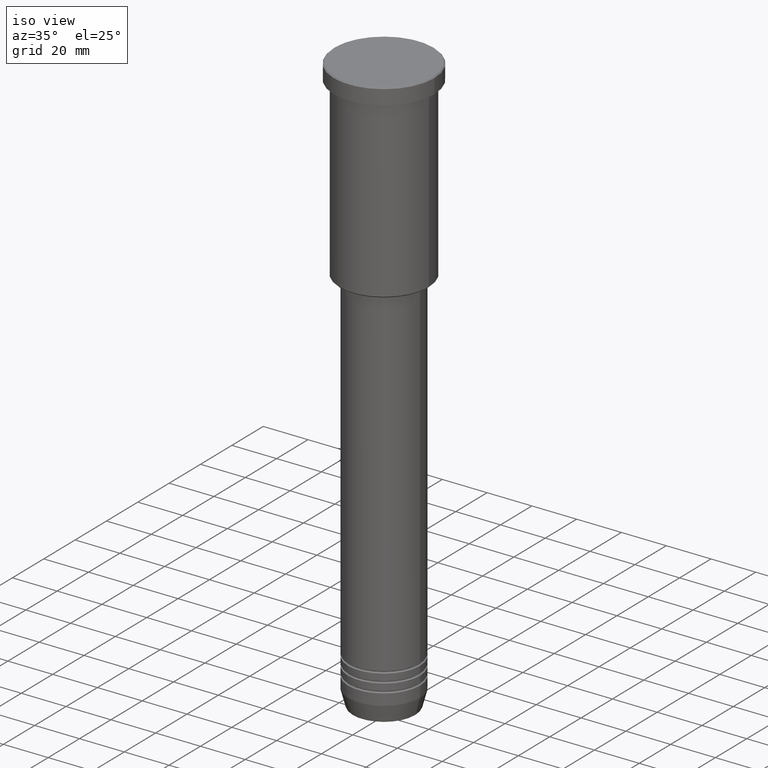
[diagram: clean part render]
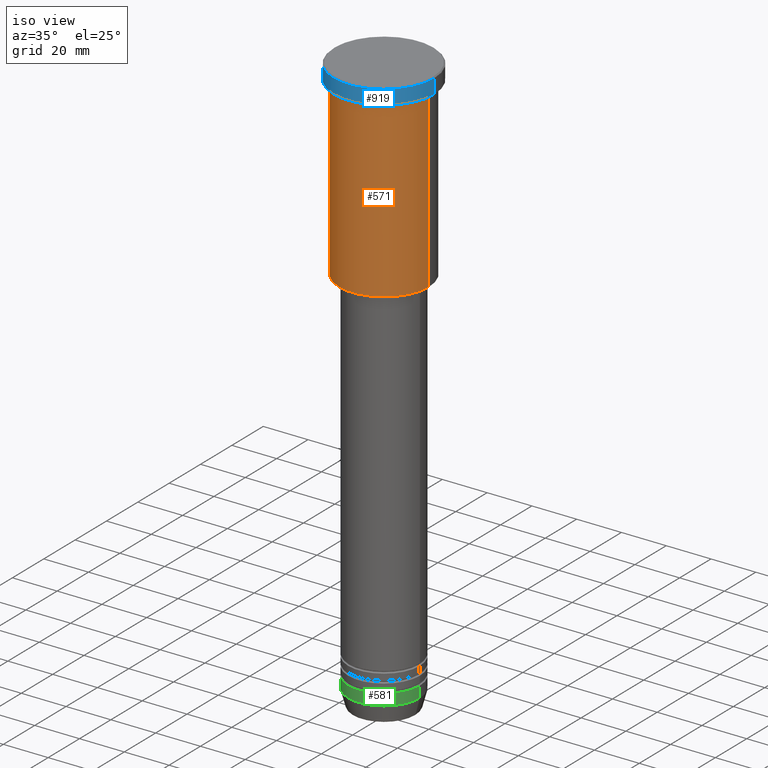
[diagram: same view with three faces highlighted in distinct colors, each labeled with its STEP entity id]
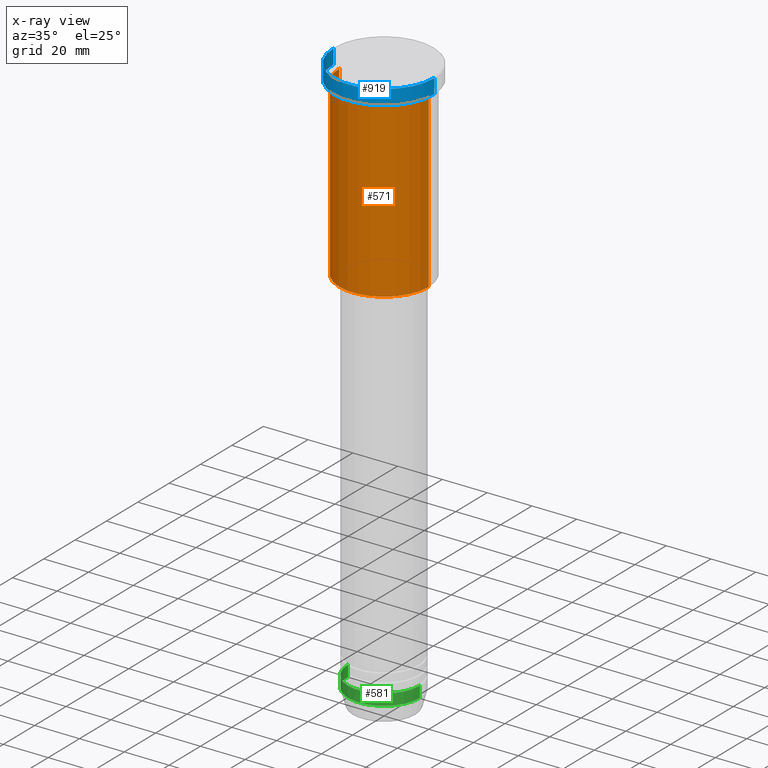
[diagram: x-ray of the same camera — body ghosted, the three highlighted faces saturated]
A machine part, iso view with three faces highlighted in distinct colors.
The next image is the same camera in x-ray (body ghosted, the three faces saturated) — at least one of them is partly hidden behind the body in this view.
Their STEP definitions:

[orange] entity #571 — the highlighted cylindrical surface (partial cylindrical patch) has radius 20 mm, axis along (-0, -0, 1).
#29 = VECTOR ( 'NONE', #962, 1000.000000000000000 ) ;
#35 = CARTESIAN_POINT ( 'NONE',  ( -20.00000000000000000, 2.449293598294706513E-15, -7.999999999999994671 ) ) ;
#90 = DIRECTION ( 'NONE',  ( 1.000000000000000000, 0.000000000000000000, 0.000000000000000000 ) ) ;
#95 = CARTESIAN_POINT ( 'NONE',  ( 0.000000000000000000, 0.000000000000000000, -85.49999999999997158 ) ) ;
#102 = FACE_OUTER_BOUND ( 'NONE', #611, .T. ) ;
#179 = DIRECTION ( 'NONE',  ( -1.000000000000000000, 0.000000000000000000, 0.000000000000000000 ) ) ;
#185 = CIRCLE ( 'NONE', #1116, 20.00000000000000000 ) ;
#211 = ORIENTED_EDGE ( 'NONE', *, *, #404, .F. ) ;
#225 = EDGE_CURVE ( 'NONE', #1054, #427, #1089, .T. ) ;
#247 = ORIENTED_EDGE ( 'NONE', *, *, #599, .T. ) ;
#263 = AXIS2_PLACEMENT_3D ( 'NONE', #756, #478, #90 ) ;
#303 = AXIS2_PLACEMENT_3D ( 'NONE', #95, #828, #179 ) ;
#337 = VERTEX_POINT ( 'NONE', #410 ) ;
#391 = DIRECTION ( 'NONE',  ( -0.000000000000000000, -0.000000000000000000, 1.000000000000000000 ) ) ;
#404 = EDGE_CURVE ( 'NONE', #1027, #427, #185, .T. ) ;
#410 = CARTESIAN_POINT ( 'NONE',  ( -20.00000000000000355, 2.449293598294706907E-15, -85.49999999999997158 ) ) ;
#427 = VERTEX_POINT ( 'NONE', #543 ) ;
#478 = DIRECTION ( 'NONE',  ( -0.000000000000000000, -0.000000000000000000, 1.000000000000000000 ) ) ;
#543 = CARTESIAN_POINT ( 'NONE',  ( 20.00000000000000000, 0.000000000000000000, -7.999999999999994671 ) ) ;
#556 = VECTOR ( 'NONE', #391, 1000.000000000000000 ) ;
#557 = CYLINDRICAL_SURFACE ( 'NONE', #263, 20.00000000000000355 ) ;
#571 = ADVANCED_FACE ( 'NONE', ( #102 ), #557, .T. ) ;
#599 = EDGE_CURVE ( 'NONE', #337, #1054, #950, .T. ) ;
#611 = EDGE_LOOP ( 'NONE', ( #755, #247, #998, #211 ) ) ;
#632 = CARTESIAN_POINT ( 'NONE',  ( -20.00000000000000355, 2.449293598294706907E-15, 0.000000000000000000 ) ) ;
#636 = CARTESIAN_POINT ( 'NONE',  ( 20.00000000000000355, 0.000000000000000000, -85.49999999999997158 ) ) ;
#704 = EDGE_CURVE ( 'NONE', #337, #1027, #1158, .T. ) ;
#726 = CARTESIAN_POINT ( 'NONE',  ( 0.000000000000000000, 0.000000000000000000, -7.999999999999994671 ) ) ;
#755 = ORIENTED_EDGE ( 'NONE', *, *, #704, .F. ) ;
#756 = CARTESIAN_POINT ( 'NONE',  ( 0.000000000000000000, 0.000000000000000000, 0.000000000000000000 ) ) ;
#794 = DIRECTION ( 'NONE',  ( 1.000000000000000000, 0.000000000000000000, 0.000000000000000000 ) ) ;
#828 = DIRECTION ( 'NONE',  ( -0.000000000000000000, -0.000000000000000000, 1.000000000000000000 ) ) ;
#950 = CIRCLE ( 'NONE', #303, 20.00000000000000355 ) ;
#962 = DIRECTION ( 'NONE',  ( -0.000000000000000000, -0.000000000000000000, 1.000000000000000000 ) ) ;
#972 = DIRECTION ( 'NONE',  ( -0.000000000000000000, -0.000000000000000000, 1.000000000000000000 ) ) ;
#998 = ORIENTED_EDGE ( 'NONE', *, *, #225, .T. ) ;
#1024 = CARTESIAN_POINT ( 'NONE',  ( 20.00000000000000355, 0.000000000000000000, 0.000000000000000000 ) ) ;
#1027 = VERTEX_POINT ( 'NONE', #35 ) ;
#1054 = VERTEX_POINT ( 'NONE', #636 ) ;
#1089 = LINE ( 'NONE', #1024, #556 ) ;
#1116 = AXIS2_PLACEMENT_3D ( 'NONE', #726, #972, #794 ) ;
#1158 = LINE ( 'NONE', #632, #29 ) ;

[blue] entity #919 — the highlighted cylindrical surface (partial cylindrical patch) has radius 22.5 mm, axis along (-0, -0, 1).
#6 = ORIENTED_EDGE ( 'NONE', *, *, #995, .F. ) ;
#10 = CARTESIAN_POINT ( 'NONE',  ( -22.50000000000000000, 2.755455298081544778E-15, -0.5000000000001045830 ) ) ;
#26 = VERTEX_POINT ( 'NONE', #1052 ) ;
#109 = CARTESIAN_POINT ( 'NONE',  ( 22.50000000000000000, 0.000000000000000000, -6.999999999999995559 ) ) ;
#119 = CARTESIAN_POINT ( 'NONE',  ( 0.000000000000000000, 0.000000000000000000, -0.5000000000001045830 ) ) ;
#194 = EDGE_CURVE ( 'NONE', #26, #922, #398, .T. ) ;
#204 = CYLINDRICAL_SURFACE ( 'NONE', #914, 22.50000000000000000 ) ;
#210 = CARTESIAN_POINT ( 'NONE',  ( -22.50000000000000000, 2.755455298081544778E-15, 0.000000000000000000 ) ) ;
#224 = DIRECTION ( 'NONE',  ( 0.000000000000000000, 0.000000000000000000, -1.000000000000000000 ) ) ;
#227 = VECTOR ( 'NONE', #867, 1000.000000000000000 ) ;
#304 = DIRECTION ( 'NONE',  ( -0.000000000000000000, -0.000000000000000000, 1.000000000000000000 ) ) ;
#331 = DIRECTION ( 'NONE',  ( -0.000000000000000000, -0.000000000000000000, 1.000000000000000000 ) ) ;
#368 = CARTESIAN_POINT ( 'NONE',  ( 0.000000000000000000, 0.000000000000000000, -6.999999999999995559 ) ) ;
#378 = ORIENTED_EDGE ( 'NONE', *, *, #1014, .T. ) ;
#398 = CIRCLE ( 'NONE', #1134, 22.50000000000000000 ) ;
#408 = FACE_OUTER_BOUND ( 'NONE', #970, .T. ) ;
#442 = ORIENTED_EDGE ( 'NONE', *, *, #194, .T. ) ;
#514 = CARTESIAN_POINT ( 'NONE',  ( 22.50000000000000000, 0.000000000000000000, 0.000000000000000000 ) ) ;
#517 = VERTEX_POINT ( 'NONE', #630 ) ;
#553 = ORIENTED_EDGE ( 'NONE', *, *, #925, .T. ) ;
#586 = CARTESIAN_POINT ( 'NONE',  ( 0.000000000000000000, 0.000000000000000000, 0.000000000000000000 ) ) ;
#606 = DIRECTION ( 'NONE',  ( 1.000000000000000000, 0.000000000000000000, 0.000000000000000000 ) ) ;
#630 = CARTESIAN_POINT ( 'NONE',  ( 22.50000000000000000, 0.000000000000000000, -0.5000000000001045830 ) ) ;
#669 = LINE ( 'NONE', #210, #698 ) ;
#698 = VECTOR ( 'NONE', #331, 1000.000000000000000 ) ;
#751 = CIRCLE ( 'NONE', #1173, 22.50000000000000000 ) ;
#763 = DIRECTION ( 'NONE',  ( 1.000000000000000000, 0.000000000000000000, 0.000000000000000000 ) ) ;
#844 = DIRECTION ( 'NONE',  ( -0.000000000000000000, -0.000000000000000000, 1.000000000000000000 ) ) ;
#863 = VERTEX_POINT ( 'NONE', #10 ) ;
#867 = DIRECTION ( 'NONE',  ( -0.000000000000000000, -0.000000000000000000, 1.000000000000000000 ) ) ;
#914 = AXIS2_PLACEMENT_3D ( 'NONE', #586, #304, #763 ) ;
#919 = ADVANCED_FACE ( 'NONE', ( #408 ), #204, .T. ) ;
#922 = VERTEX_POINT ( 'NONE', #109 ) ;
#925 = EDGE_CURVE ( 'NONE', #517, #863, #751, .T. ) ;
#970 = EDGE_LOOP ( 'NONE', ( #6, #442, #378, #553 ) ) ;
#995 = EDGE_CURVE ( 'NONE', #26, #863, #669, .T. ) ;
#1014 = EDGE_CURVE ( 'NONE', #922, #517, #1045, .T. ) ;
#1045 = LINE ( 'NONE', #514, #227 ) ;
#1052 = CARTESIAN_POINT ( 'NONE',  ( -22.50000000000000000, 2.755455298081544778E-15, -6.999999999999995559 ) ) ;
#1134 = AXIS2_PLACEMENT_3D ( 'NONE', #368, #844, #1177 ) ;
#1173 = AXIS2_PLACEMENT_3D ( 'NONE', #119, #224, #606 ) ;
#1177 = DIRECTION ( 'NONE',  ( 1.000000000000000000, 0.000000000000000000, 0.000000000000000000 ) ) ;

[green] entity #581 — the highlighted cylindrical surface (partial cylindrical patch) has radius 16 mm, axis along (-0, -0, 1).
#8 = EDGE_CURVE ( 'NONE', #1112, #890, #61, .T. ) ;
#36 = DIRECTION ( 'NONE',  ( -0.000000000000000000, -0.000000000000000000, 1.000000000000000000 ) ) ;
#61 = LINE ( 'NONE', #779, #893 ) ;
#67 = DIRECTION ( 'NONE',  ( -0.000000000000000000, -0.000000000000000000, 1.000000000000000000 ) ) ;
#81 = DIRECTION ( 'NONE',  ( 1.000000000000000000, 0.000000000000000000, 0.000000000000000000 ) ) ;
#153 = CARTESIAN_POINT ( 'NONE',  ( 16.00000000000000000, 0.000000000000000000, -252.5000000000000000 ) ) ;
#174 = CARTESIAN_POINT ( 'NONE',  ( 0.000000000000000000, 0.000000000000000000, -247.5000000000000000 ) ) ;
#203 = AXIS2_PLACEMENT_3D ( 'NONE', #993, #468, #81 ) ;
#241 = VECTOR ( 'NONE', #423, 1000.000000000000000 ) ;
#246 = EDGE_CURVE ( 'NONE', #1150, #806, #494, .T. ) ;
#271 = EDGE_LOOP ( 'NONE', ( #987, #1020, #967, #409 ) ) ;
#334 = CARTESIAN_POINT ( 'NONE',  ( -16.00000000000000000, 1.959434878635765131E-15, 0.000000000000000000 ) ) ;
#356 = DIRECTION ( 'NONE',  ( 1.000000000000000000, 0.000000000000000000, 0.000000000000000000 ) ) ;
#409 = ORIENTED_EDGE ( 'NONE', *, *, #412, .F. ) ;
#412 = EDGE_CURVE ( 'NONE', #806, #890, #653, .T. ) ;
#420 = DIRECTION ( 'NONE',  ( -0.000000000000000000, -0.000000000000000000, 1.000000000000000000 ) ) ;
#423 = DIRECTION ( 'NONE',  ( -0.000000000000000000, -0.000000000000000000, 1.000000000000000000 ) ) ;
#424 = CARTESIAN_POINT ( 'NONE',  ( -16.00000000000000000, 1.959434878635765131E-15, -252.5000000000000000 ) ) ;
#457 = CARTESIAN_POINT ( 'NONE',  ( -16.00000000000000000, 1.959434878635765131E-15, -247.5000000000000000 ) ) ;
#468 = DIRECTION ( 'NONE',  ( -0.000000000000000000, -0.000000000000000000, 1.000000000000000000 ) ) ;
#494 = LINE ( 'NONE', #334, #241 ) ;
#505 = AXIS2_PLACEMENT_3D ( 'NONE', #174, #67, #356 ) ;
#523 = CIRCLE ( 'NONE', #1037, 16.00000000000000000 ) ;
#581 = ADVANCED_FACE ( 'NONE', ( #836 ), #1016, .T. ) ;
#653 = CIRCLE ( 'NONE', #505, 16.00000000000000000 ) ;
#660 = EDGE_CURVE ( 'NONE', #1150, #1112, #523, .T. ) ;
#702 = DIRECTION ( 'NONE',  ( 1.000000000000000000, 0.000000000000000000, 0.000000000000000000 ) ) ;
#779 = CARTESIAN_POINT ( 'NONE',  ( 16.00000000000000000, 0.000000000000000000, 0.000000000000000000 ) ) ;
#806 = VERTEX_POINT ( 'NONE', #457 ) ;
#836 = FACE_OUTER_BOUND ( 'NONE', #271, .T. ) ;
#890 = VERTEX_POINT ( 'NONE', #1002 ) ;
#893 = VECTOR ( 'NONE', #36, 1000.000000000000000 ) ;
#967 = ORIENTED_EDGE ( 'NONE', *, *, #8, .T. ) ;
#987 = ORIENTED_EDGE ( 'NONE', *, *, #246, .F. ) ;
#993 = CARTESIAN_POINT ( 'NONE',  ( 0.000000000000000000, 0.000000000000000000, 0.000000000000000000 ) ) ;
#1002 = CARTESIAN_POINT ( 'NONE',  ( 16.00000000000000000, 0.000000000000000000, -247.5000000000000000 ) ) ;
#1016 = CYLINDRICAL_SURFACE ( 'NONE', #203, 16.00000000000000000 ) ;
#1020 = ORIENTED_EDGE ( 'NONE', *, *, #660, .T. ) ;
#1031 = CARTESIAN_POINT ( 'NONE',  ( 0.000000000000000000, 0.000000000000000000, -252.5000000000000000 ) ) ;
#1037 = AXIS2_PLACEMENT_3D ( 'NONE', #1031, #420, #702 ) ;
#1112 = VERTEX_POINT ( 'NONE', #153 ) ;
#1150 = VERTEX_POINT ( 'NONE', #424 ) ;